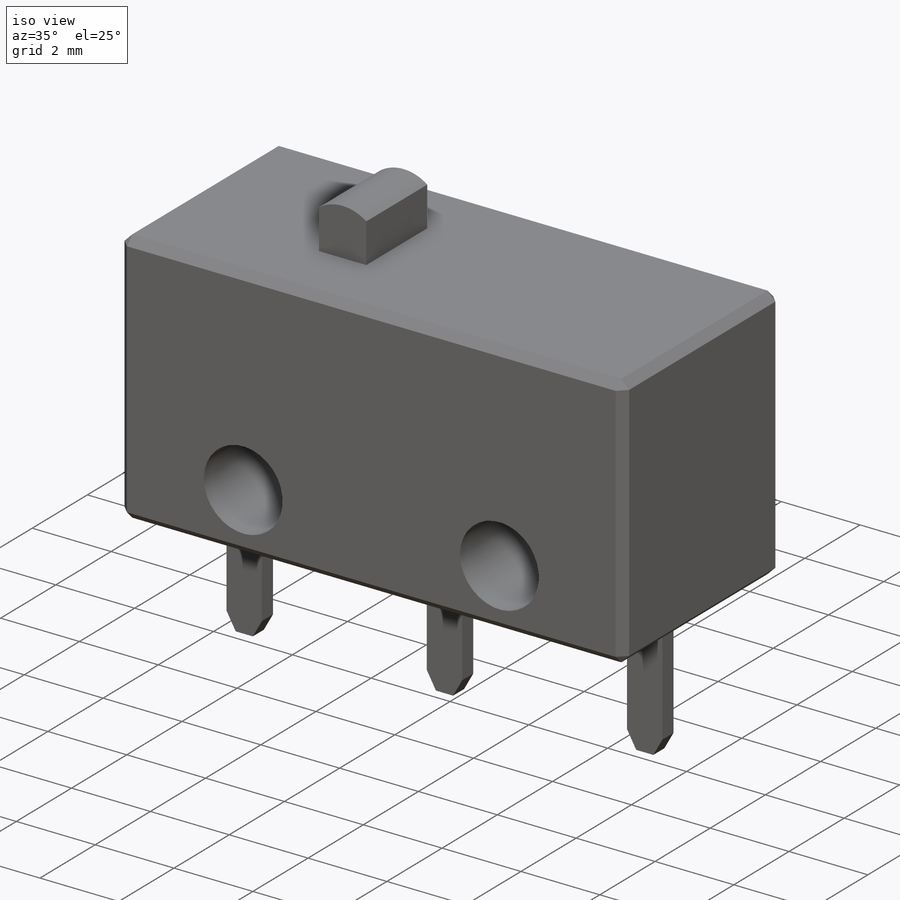
[diagram: iso view]
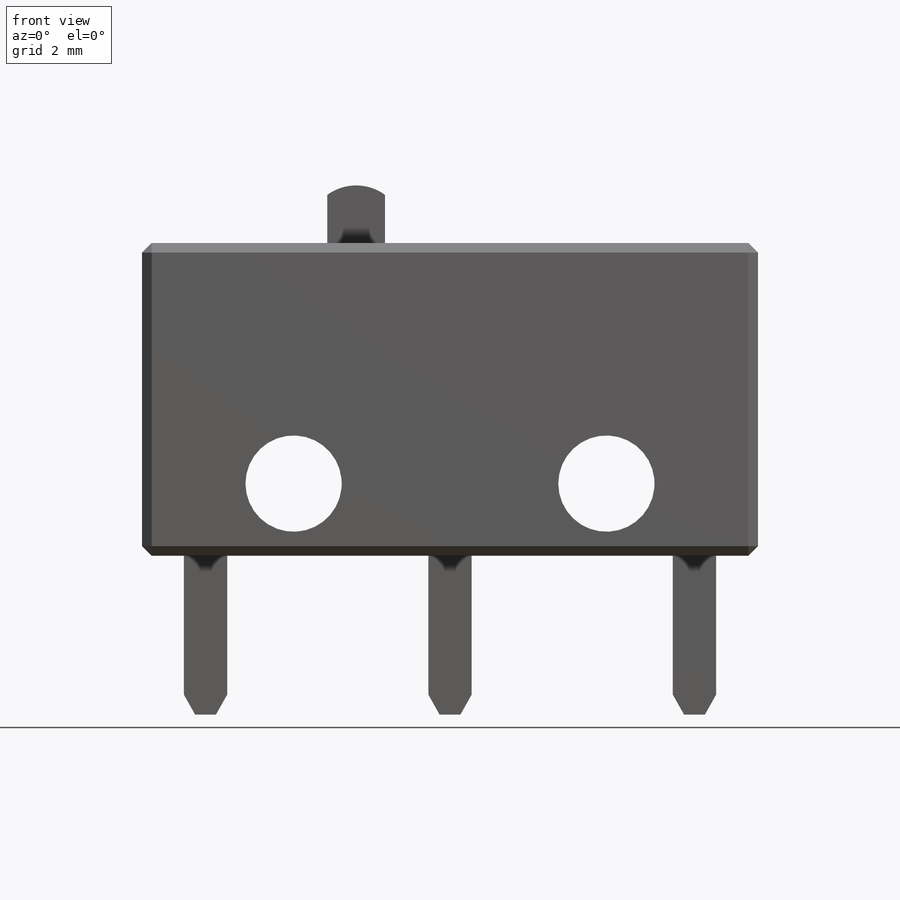
[diagram: front view]
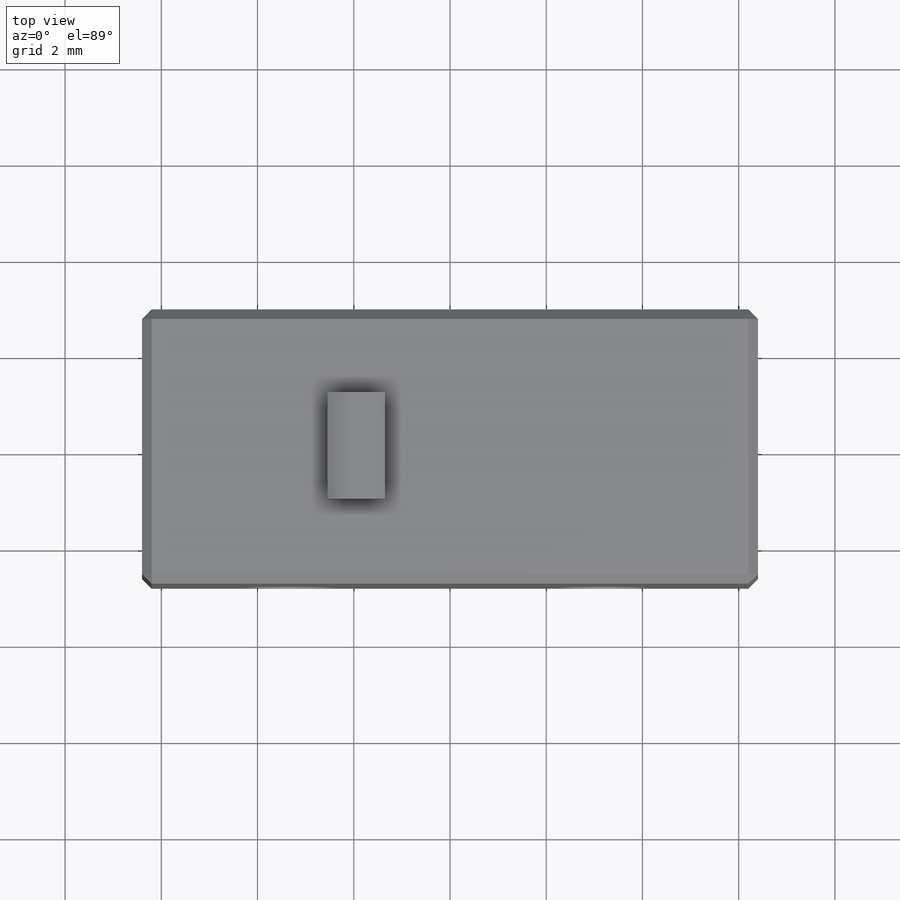
[diagram: top view]
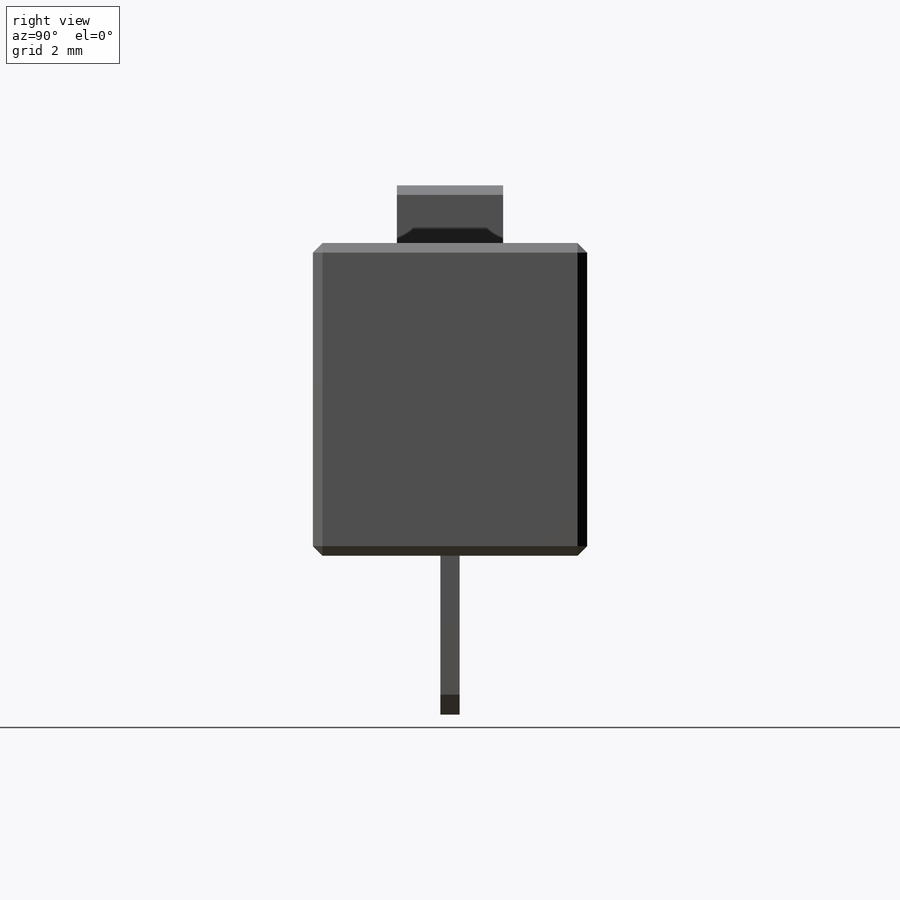
[diagram: right view]
SOLIDWORKS PART (.sldprt)
format: sldprt  version: not decoded by parser v0  size: 292,352 bytes
history: native  units: mm
features: sketch x3, extrude x3, material x1, plane x1, chamfer x1 (+12 scaffold rows collapsed)
feature tree (21):
  scaffold x12  (default folders/planes/origin — collapsed)
  material  "Material <not specified>"
  sketch  "Sketch2"  dims[c1.D4=~1.43033mm c1.D5=2.0mm c1.D6=1.1049mm c1.D7=2.2098mm c1.D8=2.2098mm c1.D9=2.2098mm c1.D13=1.1049mm c1.D3=2.0mm c1.D1=19.9898mm c1.D2=9.652mm c2.D3=9.4996mm c2.D2=1.5mm c2.D4=5.207mm c2.D6=1.524mm c2.D7=6.6548mm c2.D8=7.2898mm c2.D9=7.493mm c2.D10=0.508mm c2.D11=~2.886593mm c3.D11=10.0deg c3.D12=~0.786744mm c4.D12=135.0deg c4.D13=6.9088mm c4.D3=3.25mm c4.D4=3.25mm c4.D1=12.8mm c4.D7=6.5mm]
  extrude  "Extrude1"  Depth=5.7mm
  sketch  "Sketch3"  dims[c1.D1=1.1049mm c1.D3=1.016mm c2.D1=9.2964mm c2.D2=1.2mm c3.D1=4.1426mm c4.D1=90.0deg c5.D1=5.2mm c5.D4=1.0mm]
  extrude  "Extrude2"  Depth=2.2098mm
  plane  "Plane1"  Offset=7.493mm
  sketch  "Sketch12"  dims[D1=0.9mm D2=3.3mm D3=~0.434138mm D4=2.54mm D5=2.54mm]
  extrude  "Boss-Extrude2"  Depth=0.4mm
  chamfer  "Chamfer1"  Distance=0.2mm Angle=45deg
decode coverage: 7 of 7 modeling features carry decoded parameters
note: ~ marks probable driven/reference dimensions
note: suppression state not decoded; provenance and decode notes live in map.json
